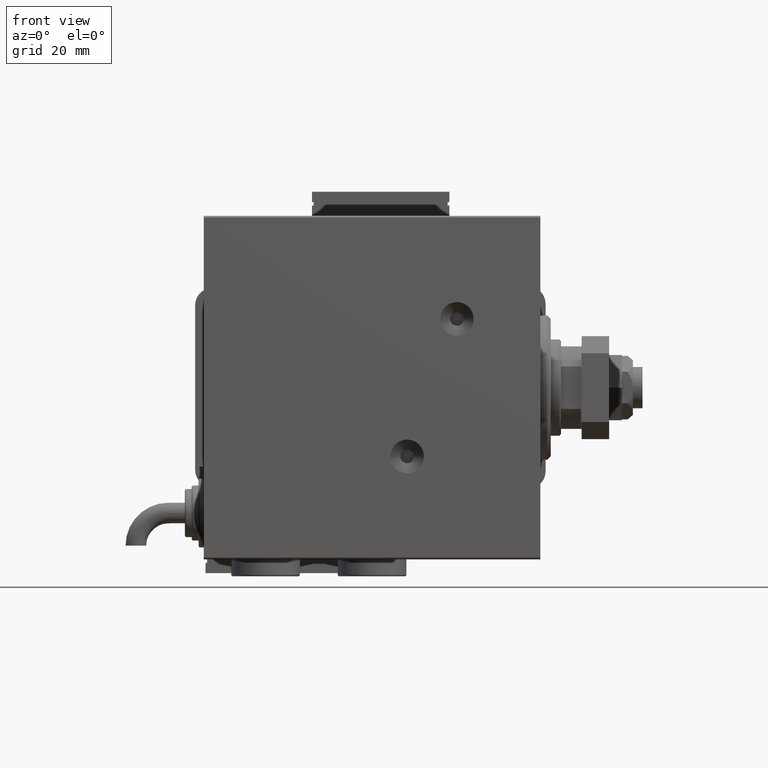
[diagram: clean part render]
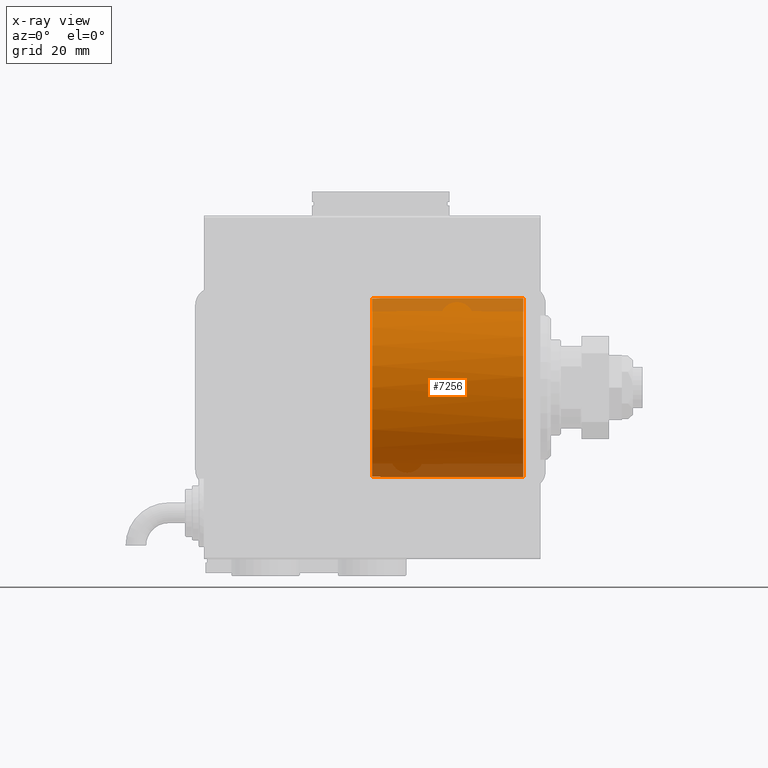
[diagram: x-ray — body ghosted, one internal face saturated and labeled with its STEP entity id]
A machine part, front view, then the same camera in x-ray: the body is ghosted and one INTERNAL B-rep face — a face not visible from any outside direction — is saturated and labeled: STEP entity #7256.
In plain terms, the highlighted cylindrical surface (partial cylindrical patch) has radius 26 mm, axis along (1, -0, 0).
Its self-contained STEP definition (entity closure, byte-faithful):
#380 = CYLINDRICAL_SURFACE ( 'NONE', #10644, 26.00000000000000355 ) ;
#1946 = EDGE_CURVE ( 'NONE', #19923, #53542, #37448, .T. ) ;
#3547 = CARTESIAN_POINT ( 'NONE',  ( 47.89073077407087453, -2.246416265527503953, -25.90284905351749245 ) ) ;
#3855 = CARTESIAN_POINT ( 'NONE',  ( 46.51582698692548945, -0.3255351818746884951, -25.99846335647869111 ) ) ;
#4236 = DIRECTION ( 'NONE',  ( -1.000000000000000000, -0.000000000000000000, -0.000000000000000000 ) ) ;
#4870 = ORIENTED_EDGE ( 'NONE', *, *, #34551, .T. ) ;
#6170 = DIRECTION ( 'NONE',  ( 0.000000000000000000, 0.000000000000000000, 1.000000000000000000 ) ) ;
#6535 = CARTESIAN_POINT ( 'NONE',  ( 48.99999999999999289, -2.499999999999999112, -25.87952858921507016 ) ) ;
#6627 = LINE ( 'NONE', #49073, #6765 ) ;
#6765 = VECTOR ( 'NONE', #20064, 1000.000000000000000 ) ;
#7128 = ORIENTED_EDGE ( 'NONE', *, *, #42290, .T. ) ;
#7256 = ADVANCED_FACE ( 'NONE', ( #43119 ), #380, .F. ) ;
#7927 = CARTESIAN_POINT ( 'NONE',  ( 46.57994581485352370, -0.6484030031399271587, -25.99241511668976301 ) ) ;
#8237 = CARTESIAN_POINT ( 'NONE',  ( 48.99999999999999289, -2.499999999999999112, -25.87952858921507016 ) ) ;
#8282 = CARTESIAN_POINT ( 'NONE',  ( 48.35251734720075234, -2.420193834591356286, 25.88713351657672845 ) ) ;
#8344 = B_SPLINE_CURVE_WITH_KNOTS ( 'NONE', 3,
 ( #41960, #18561, #56666, #19169, #13889, #38183, #17954, #23549, #42573, #61661, #61049, #32899, #51038, #56060, #8282, #13270, #32289, #18862 ),
 .UNSPECIFIED., .F., .F.,
 ( 4, 2, 2, 2, 2, 2, 2, 2, 4 ),
 ( 0.007820654687069023003, 0.008309569309530018960, 0.008798483931991014917, 0.009287398554452010874, 0.009776313176913006830, 0.01026522779937400279, 0.01075414242183499874, 0.01124305704429599470, 0.01173197166675699066 ),
 .UNSPECIFIED. ) ;
#8542 = CARTESIAN_POINT ( 'NONE',  ( 47.11633526003846839, -1.651783113730551422, -25.94773543709675678 ) ) ;
#10053 = DIRECTION ( 'NONE',  ( -1.000000000000000000, -0.000000000000000000, -0.000000000000000000 ) ) ;
#10155 = CARTESIAN_POINT ( 'NONE',  ( 46.50000000000000000, -1.796472939459810184E-23, 26.00000000000000355 ) ) ;
#10644 = AXIS2_PLACEMENT_3D ( 'NONE', #52822, #10053, #48125 ) ;
#11177 = CARTESIAN_POINT ( 'NONE',  ( 5.000000000000000000, 3.184081677783118585E-15, -26.00000000000000355 ) ) ;
#12603 = DIRECTION ( 'NONE',  ( -1.000000000000000000, 0.000000000000000000, 0.000000000000000000 ) ) ;
#13225 = CARTESIAN_POINT ( 'NONE',  ( 48.67213913165271322, -2.483762860601321787, -25.88111169265567213 ) ) ;
#13270 = CARTESIAN_POINT ( 'NONE',  ( 48.67227445165369915, -2.483780978192544620, 25.88110994440602042 ) ) ;
#13889 = CARTESIAN_POINT ( 'NONE',  ( 46.62795462308692152, -0.8061857280105739765, 25.98793459048009424 ) ) ;
#15999 = VERTEX_POINT ( 'NONE', #60121 ) ;
#16166 = EDGE_CURVE ( 'NONE', #47671, #41909, #8344, .T. ) ;
#16547 = AXIS2_PLACEMENT_3D ( 'NONE', #22566, #12603, #37201 ) ;
#17954 = CARTESIAN_POINT ( 'NONE',  ( 46.83017875354468629, -1.252567112413196071, 25.97017182302258220 ) ) ;
#18561 = CARTESIAN_POINT ( 'NONE',  ( 46.50000000000000711, -0.1632508128424748906, 26.00000000000001066 ) ) ;
#18862 = CARTESIAN_POINT ( 'NONE',  ( 48.99999999999999289, -2.500000000000019540, 25.87952858921506305 ) ) ;
#18954 = ORIENTED_EDGE ( 'NONE', *, *, #16166, .T. ) ;
#19169 = CARTESIAN_POINT ( 'NONE',  ( 46.57991866312166707, -0.6482818571340246416, 25.99241766690434474 ) ) ;
#19831 = LINE ( 'NONE', #52933, #28732 ) ;
#19863 = B_SPLINE_CURVE_WITH_KNOTS ( 'NONE', 3,
 ( #8237, #61312, #13225, #27261, #46302, #3547, #41607, #32245, #56624, #8542, #42528, #31633, #27574, #50682, #7927, #3855, #22894, #41913 ),
 .UNSPECIFIED., .F., .F.,
 ( 4, 2, 2, 2, 2, 2, 2, 2, 4 ),
 ( 0.000000000000000000, 0.0004889038340697617752, 0.0009778076681395235503, 0.001466711502209285325, 0.001955615336279047101, 0.002444519170348808876, 0.002933423004418570651, 0.003422326838488332426, 0.003911230672558094201 ),
 .UNSPECIFIED. ) ;
#19923 = VERTEX_POINT ( 'NONE', #11177 ) ;
#20045 = ORIENTED_EDGE ( 'NONE', *, *, #35418, .F. ) ;
#20064 = DIRECTION ( 'NONE',  ( -1.000000000000000000, -0.000000000000000000, -0.000000000000000000 ) ) ;
#22566 = CARTESIAN_POINT ( 'NONE',  ( 5.000000000000000000, 0.000000000000000000, 0.000000000000000000 ) ) ;
#22894 = CARTESIAN_POINT ( 'NONE',  ( 46.50000000000000711, -0.1632048367001796285, -26.00000000000001066 ) ) ;
#23549 = CARTESIAN_POINT ( 'NONE',  ( 47.01297106214286003, -1.526029034057477807, 25.95553860499968124 ) ) ;
#26117 = CARTESIAN_POINT ( 'NONE',  ( 48.99999999999999289, 0.000000000000000000, 0.000000000000000000 ) ) ;
#27261 = CARTESIAN_POINT ( 'NONE',  ( 48.35239313040842291, -2.420160333356796478, -25.88713665812166198 ) ) ;
#27574 = CARTESIAN_POINT ( 'NONE',  ( 46.75257165897365752, -1.107063357904832790, -25.97685665116501141 ) ) ;
#28732 = VECTOR ( 'NONE', #4236, 1000.000000000000000 ) ;
#30954 = ORIENTED_EDGE ( 'NONE', *, *, #39144, .F. ) ;
#31633 = CARTESIAN_POINT ( 'NONE',  ( 46.83014300857264089, -1.252500565541644351, -25.97017489915007360 ) ) ;
#32026 = CARTESIAN_POINT ( 'NONE',  ( 48.99999999999999289, -2.500000000000019540, 25.87952858921506305 ) ) ;
#32245 = CARTESIAN_POINT ( 'NONE',  ( 47.47539377652167758, -1.988033269128851366, -25.92404319843367944 ) ) ;
#32289 = CARTESIAN_POINT ( 'NONE',  ( 48.83477254102518827, -2.500000000000020428, 25.87952858921507371 ) ) ;
#32899 = CARTESIAN_POINT ( 'NONE',  ( 47.74728814243972863, -2.169657715646846619, 25.90947464024000624 ) ) ;
#34551 = EDGE_CURVE ( 'NONE', #50835, #15999, #19863, .T. ) ;
#35418 = EDGE_CURVE ( 'NONE', #50835, #41909, #61486, .T. ) ;
#37201 = DIRECTION ( 'NONE',  ( 0.000000000000000000, 0.000000000000000000, 1.000000000000000000 ) ) ;
#37448 = CIRCLE ( 'NONE', #16547, 26.00000000000000355 ) ;
#38183 = CARTESIAN_POINT ( 'NONE',  ( 46.75262534503168865, -1.107177428594329882, 25.97685196186657564 ) ) ;
#39144 = EDGE_CURVE ( 'NONE', #47671, #53542, #19831, .T. ) ;
#41607 = CARTESIAN_POINT ( 'NONE',  ( 47.74713917450439027, -2.169571424906405532, -25.90948189110790167 ) ) ;
#41909 = VERTEX_POINT ( 'NONE', #32026 ) ;
#41913 = CARTESIAN_POINT ( 'NONE',  ( 46.50000000000000000, 3.184081639590435214E-15, -26.00000000000000355 ) ) ;
#41960 = CARTESIAN_POINT ( 'NONE',  ( 46.50000000000000000, -1.796472939459810184E-23, 26.00000000000000355 ) ) ;
#42290 = EDGE_CURVE ( 'NONE', #15999, #19923, #6627, .T. ) ;
#42528 = CARTESIAN_POINT ( 'NONE',  ( 47.01288410097976822, -1.525912000670203161, -25.95554535210804303 ) ) ;
#42573 = CARTESIAN_POINT ( 'NONE',  ( 47.11644282775269943, -1.651905895843509997, 25.94772759100586867 ) ) ;
#43119 = FACE_OUTER_BOUND ( 'NONE', #57827, .T. ) ;
#45690 = ORIENTED_EDGE ( 'NONE', *, *, #1946, .T. ) ;
#46302 = CARTESIAN_POINT ( 'NONE',  ( 48.19352101961040802, -2.372015157584302258, -25.89164960406209559 ) ) ;
#47671 = VERTEX_POINT ( 'NONE', #10155 ) ;
#48125 = DIRECTION ( 'NONE',  ( 0.000000000000000000, 0.000000000000000000, 1.000000000000000000 ) ) ;
#49073 = CARTESIAN_POINT ( 'NONE',  ( 48.99999999999999289, 3.184081677783118585E-15, -26.00000000000000355 ) ) ;
#50682 = CARTESIAN_POINT ( 'NONE',  ( 46.62793841299855302, -0.8061310401765081624, -25.98793611466011555 ) ) ;
#50835 = VERTEX_POINT ( 'NONE', #6535 ) ;
#51038 = CARTESIAN_POINT ( 'NONE',  ( 47.89086699118785617, -2.246479982575416035, 25.90284346713514907 ) ) ;
#52822 = CARTESIAN_POINT ( 'NONE',  ( 48.99999999999999289, 0.000000000000000000, 0.000000000000000000 ) ) ;
#52933 = CARTESIAN_POINT ( 'NONE',  ( 48.99999999999999289, 0.000000000000000000, 26.00000000000000355 ) ) ;
#53542 = VERTEX_POINT ( 'NONE', #59472 ) ;
#54570 = DIRECTION ( 'NONE',  ( -1.000000000000000000, 0.000000000000000000, 0.000000000000000000 ) ) ;
#56060 = CARTESIAN_POINT ( 'NONE',  ( 48.19357266735823941, -2.372029363333639562, 25.89164824213594329 ) ) ;
#56624 = CARTESIAN_POINT ( 'NONE',  ( 47.34681529442086401, -1.882434762911839643, -25.93202269649926350 ) ) ;
#56666 = CARTESIAN_POINT ( 'NONE',  ( 46.51583617535392534, -0.3255658700105529824, 25.99846250072058496 ) ) ;
#57827 = EDGE_LOOP ( 'NONE', ( #4870, #7128, #45690, #30954, #18954, #20045 ) ) ;
#59470 = AXIS2_PLACEMENT_3D ( 'NONE', #26117, #54570, #6170 ) ;
#59472 = CARTESIAN_POINT ( 'NONE',  ( 5.000000000000000000, 0.000000000000000000, 26.00000000000000355 ) ) ;
#60121 = CARTESIAN_POINT ( 'NONE',  ( 46.50000000000000000, 3.184081639590435214E-15, -26.00000000000000355 ) ) ;
#61049 = CARTESIAN_POINT ( 'NONE',  ( 47.47552450085674991, -1.988133811806928053, 25.92403546291849636 ) ) ;
#61312 = CARTESIAN_POINT ( 'NONE',  ( 48.83467817174352632, -2.499999999999998668, -25.87952858921506305 ) ) ;
#61486 = CIRCLE ( 'NONE', #59470, 26.00000000000000355 ) ;
#61661 = CARTESIAN_POINT ( 'NONE',  ( 47.34693974846521769, -1.882544160077678219, 25.93201472526049756 ) ) ;